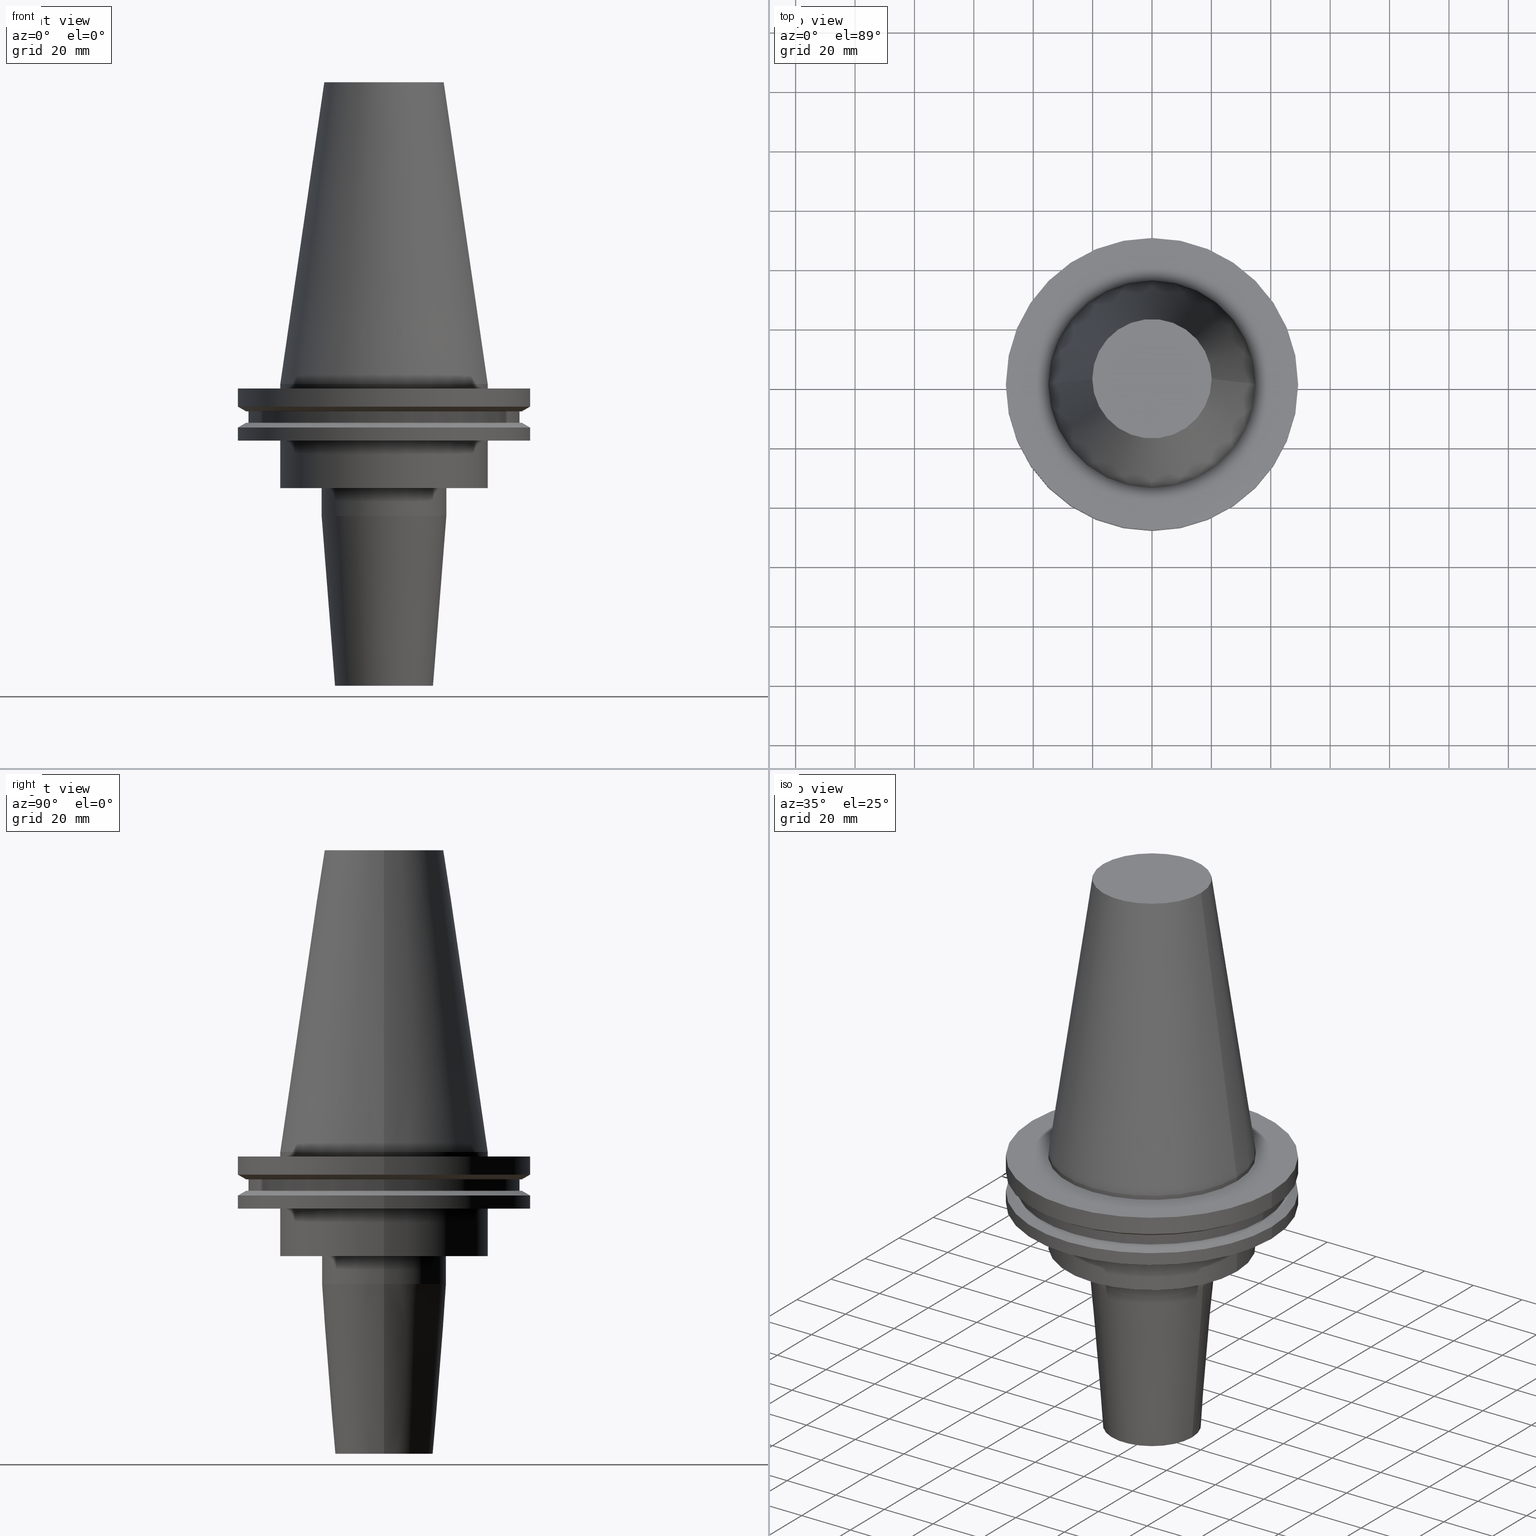
[diagram: canonical four-view strip — front | top / right | iso, engineering-drawing reading convention]
A machine part, canonical four-view strip (front | top / right | iso — engineering-drawing reading convention). The complete STEP part file that produces these views, byte-faithful:
ISO-10303-21;
HEADER;
FILE_DESCRIPTION (( 'STEP AP203' ),
    '1' );
FILE_NAME ('BCV50-SF_750-4.stp',
    '2022-03-03T17:21:51',
    ( '' ),
    ( '' ),
    'SwSTEP 2.0',
    'SolidWorks 2021',
    '' );
FILE_SCHEMA (( 'CONFIG_CONTROL_DESIGN' ));
ENDSEC;

DATA;
#1 = ADVANCED_FACE ( 'NONE', ( #333, #8 ), #359, .F. ) ;
#2 = DIRECTION ( 'NONE',  ( 1.000000000000000000, 0.000000000000000000, 0.000000000000000000 ) ) ;
#3 = AXIS2_PLACEMENT_3D ( 'NONE', #301, #351, #295 ) ;
#4 = CONICAL_SURFACE ( 'NONE', #386, 34.92499999999999005, 0.1448138465474119452 ) ;
#5 = EDGE_LOOP ( 'NONE', ( #441, #68, #309, #364 ) ) ;
#6 = DIRECTION ( 'NONE',  ( -0.000000000000000000, -0.000000000000000000, 1.000000000000000000 ) ) ;
#7 = CARTESIAN_POINT ( 'NONE',  ( -16.50000000000000000, 2.296212748401287183E-15, -101.5999999999999943 ) ) ;
#8 = FACE_OUTER_BOUND ( 'NONE', #788, .T. ) ;
#9 = DIRECTION ( 'NONE',  ( 1.000000000000000000, 0.000000000000000000, 0.000000000000000000 ) ) ;
#10 = DIRECTION ( 'NONE',  ( -1.000000000000000000, 0.000000000000000000, -0.000000000000000000 ) ) ;
#11 = EDGE_LOOP ( 'NONE', ( #174, #401, #74, #398 ) ) ;
#12 = CARTESIAN_POINT ( 'NONE',  ( -49.21499999999998920, 6.027099222003697037E-15, 101.5999999999999943 ) ) ;
#13 = CARTESIAN_POINT ( 'NONE',  ( -9.525000000000002132, 1.166476076187854219E-15, 0.000000000000000000 ) ) ;
#14 = AXIS2_PLACEMENT_3D ( 'NONE', #21, #149, #94 ) ;
#15 = ORIENTED_EDGE ( 'NONE', *, *, #25, .T. ) ;
#16 = CARTESIAN_POINT ( 'NONE',  ( -16.50000000000000000, 2.020667218593133100E-15, -101.5999999999999943 ) ) ;
#17 = DIRECTION ( 'NONE',  ( 1.000000000000000000, 0.000000000000000000, 0.000000000000000000 ) ) ;
#18 = ORIENTED_EDGE ( 'NONE', *, *, #648, .F. ) ;
#19 = DIRECTION ( 'NONE',  ( -0.000000000000000000, -0.000000000000000000, 1.000000000000000000 ) ) ;
#20 = EDGE_CURVE ( 'NONE', #453, #439, #43, .T. ) ;
#21 = CARTESIAN_POINT ( 'NONE',  ( 0.000000000000000000, 0.000000000000000000, -19.04999999999999716 ) ) ;
#22 = CARTESIAN_POINT ( 'NONE',  ( 0.000000000000000000, 0.000000000000000000, 0.000000000000000000 ) ) ;
#23 = FACE_BOUND ( 'NONE', #712, .T. ) ;
#24 = ORIENTED_EDGE ( 'NONE', *, *, #698, .F. ) ;
#25 = EDGE_CURVE ( 'NONE', #50, #493, #805, .T. ) ;
#26 = DIRECTION ( 'NONE',  ( -0.000000000000000000, -0.000000000000000000, 1.000000000000000000 ) ) ;
#27 = CIRCLE ( 'NONE', #759, 34.92499999999999005 ) ;
#28 = DIRECTION ( 'NONE',  ( -0.000000000000000000, -0.000000000000000000, 1.000000000000000000 ) ) ;
#29 = DIRECTION ( 'NONE',  ( 1.000000000000000000, 0.000000000000000000, 0.000000000000000000 ) ) ;
#30 = AXIS2_PLACEMENT_3D ( 'NONE', #440, #837, #52 ) ;
#31 = VERTEX_POINT ( 'NONE', #706 ) ;
#32 = CARTESIAN_POINT ( 'NONE',  ( 34.92499999999999005, 4.277078946022130098E-15, 0.000000000000000000 ) ) ;
#33 = PRODUCT ( 'BCV50-SF_750-4', 'BCV50-SF_750-4', '', ( #41 ) ) ;
#34 = DIRECTION ( 'NONE',  ( 1.000000000000000000, 0.000000000000000000, 0.000000000000000000 ) ) ;
#35 = ORIENTED_EDGE ( 'NONE', *, *, #105, .F. ) ;
#36 = EDGE_CURVE ( 'NONE', #578, #718, #825, .T. ) ;
#37 = DIRECTION ( 'NONE',  ( -0.000000000000000000, -0.000000000000000000, 1.000000000000000000 ) ) ;
#38 = ADVANCED_FACE ( 'NONE', ( #112 ), #507, .F. ) ;
#39 = ORIENTED_EDGE ( 'NONE', *, *, #659, .F. ) ;
#40 = FACE_OUTER_BOUND ( 'NONE', #42, .T. ) ;
#41 = MECHANICAL_CONTEXT ( 'NONE', #563, 'mechanical' ) ;
#42 = EDGE_LOOP ( 'NONE', ( #614, #261, #227, #603 ) ) ;
#43 = CIRCLE ( 'NONE', #516, 46.43919780457007818 ) ;
#44 = AXIS2_PLACEMENT_3D ( 'NONE', #345, #145, #213 ) ;
#45 = DIRECTION ( 'NONE',  ( 1.000000000000000000, 0.000000000000000000, 0.000000000000000000 ) ) ;
#46 = ORIENTED_EDGE ( 'NONE', *, *, #20, .T. ) ;
#47 = DIRECTION ( 'NONE',  ( -1.000000000000000000, 0.000000000000000000, 0.000000000000000000 ) ) ;
#48 = CARTESIAN_POINT ( 'NONE',  ( 0.000000000000000000, 49.21499999999998920, -19.04999999999999716 ) ) ;
#49 = DIRECTION ( 'NONE',  ( 1.000000000000000000, 0.000000000000000000, 0.000000000000000000 ) ) ;
#50 = VERTEX_POINT ( 'NONE', #95 ) ;
#51 = EDGE_CURVE ( 'NONE', #447, #409, #382, .T. ) ;
#52 = DIRECTION ( 'NONE',  ( 1.000000000000000000, 0.000000000000000000, 0.000000000000000000 ) ) ;
#53 = ORIENTED_EDGE ( 'NONE', *, *, #797, .T. ) ;
#54 = CARTESIAN_POINT ( 'NONE',  ( 46.43919780457007818, 5.857130358318725715E-15, -13.05499999999999794 ) ) ;
#55 = AXIS2_PLACEMENT_3D ( 'NONE', #338, #551, #427 ) ;
#56 = CONICAL_SURFACE ( 'NONE', #761, 34.92499999999999005, 0.1448138465474119452 ) ;
#57 = AXIS2_PLACEMENT_3D ( 'NONE', #569, #109, #832 ) ;
#58 = CARTESIAN_POINT ( 'NONE',  ( 0.000000000000000000, 0.000000000000000000, 0.000000000000000000 ) ) ;
#59 = VERTEX_POINT ( 'NONE', #220 ) ;
#60 = DIRECTION ( 'NONE',  ( 1.000000000000000000, 0.000000000000000000, 0.000000000000000000 ) ) ;
#61 = EDGE_CURVE ( 'NONE', #728, #150, #249, .T. ) ;
#62 = ORIENTED_EDGE ( 'NONE', *, *, #573, .T. ) ;
#63 = CARTESIAN_POINT ( 'NONE',  ( 16.50000000000000000, 0.000000000000000000, -101.5999999999999943 ) ) ;
#64 = CC_DESIGN_DATE_AND_TIME_ASSIGNMENT ( #738, #202, ( #513 ) ) ;
#65 = EDGE_CURVE ( 'NONE', #672, #200, #224, .T. ) ;
#66 = CARTESIAN_POINT ( 'NONE',  ( 0.000000000000000000, 45.64500000000000313, -13.05499999999999794 ) ) ;
#67 = CALENDAR_DATE ( 2022, 3, 3 ) ;
#68 = ORIENTED_EDGE ( 'NONE', *, *, #763, .T. ) ;
#69 = CARTESIAN_POINT ( 'NONE',  ( 0.000000000000000000, 0.000000000000000000, -7.602389855251287187 ) ) ;
#70 = AXIS2_PLACEMENT_3D ( 'NONE', #443, #721, #10 ) ;
#71 = AXIS2_PLACEMENT_3D ( 'NONE', #781, #129, #376 ) ;
#72 = AXIS2_PLACEMENT_3D ( 'NONE', #271, #604, #284 ) ;
#73 = LOCAL_TIME ( 11, 21, 51.00000000000000000, #475 ) ;
#74 = ORIENTED_EDGE ( 'NONE', *, *, #541, .T. ) ;
#75 = CARTESIAN_POINT ( 'NONE',  ( 0.000000000000000000, 9.525000000000002132, -54.59999999999999432 ) ) ;
#76 = ADVANCED_FACE ( 'NONE', ( #758 ), #354, .T. ) ;
#77 = LINE ( 'NONE', #172, #206 ) ;
#78 = APPROVAL_DATE_TIME ( #404, #590 ) ;
#79 = ORIENTED_EDGE ( 'NONE', *, *, #144, .T. ) ;
#80 = DIRECTION ( 'NONE',  ( 1.000000000000000000, 0.000000000000000000, 0.000000000000000000 ) ) ;
#81 = CARTESIAN_POINT ( 'NONE',  ( 0.000000000000000000, 0.000000000000000000, -1.499999999999987566 ) ) ;
#82 = EDGE_LOOP ( 'NONE', ( #806, #770, #641, #159 ) ) ;
#83 = DIRECTION ( 'NONE',  ( 1.000000000000000000, 0.000000000000000000, 0.000000000000000000 ) ) ;
#84 = DIRECTION ( 'NONE',  ( -0.000000000000000000, -0.000000000000000000, 1.000000000000000000 ) ) ;
#85 = AXIS2_PLACEMENT_3D ( 'NONE', #391, #576, #2 ) ;
#86 = AXIS2_PLACEMENT_3D ( 'NONE', #75, #337, #83 ) ;
#87 = ORIENTED_EDGE ( 'NONE', *, *, #317, .F. ) ;
#88 = CARTESIAN_POINT ( 'NONE',  ( 0.000000000000000000, 0.000000000000000000, -101.5999999999999943 ) ) ;
#89 = DIRECTION ( 'NONE',  ( 1.000000000000000000, 0.000000000000000000, 0.000000000000000000 ) ) ;
#90 = CARTESIAN_POINT ( 'NONE',  ( 46.43919780457007818, 0.000000000000000000, -9.204999999999991189 ) ) ;
#91 = ADVANCED_FACE ( 'NONE', ( #692 ), #657, .T. ) ;
#92 = FACE_OUTER_BOUND ( 'NONE', #250, .T. ) ;
#93 = ORIENTED_EDGE ( 'NONE', *, *, #791, .F. ) ;
#94 = DIRECTION ( 'NONE',  ( 1.000000000000000000, 0.000000000000000000, 0.000000000000000000 ) ) ;
#95 = CARTESIAN_POINT ( 'NONE',  ( -45.64500000000000313, 5.589900314708094957E-15, -9.204999999999991189 ) ) ;
#96 = CARTESIAN_POINT ( 'NONE',  ( 0.000000000000000000, 0.000000000000000000, -35.04999999999999716 ) ) ;
#97 = VERTEX_POINT ( 'NONE', #624 ) ;
#98 = CARTESIAN_POINT ( 'NONE',  ( 0.000000000000000000, 0.000000000000000000, 101.5999999999999943 ) ) ;
#99 = CIRCLE ( 'NONE', #643, 49.21499999999998920 ) ;
#100 = DIRECTION ( 'NONE',  ( 1.000000000000000000, 0.000000000000000000, 0.000000000000000000 ) ) ;
#101 = CIRCLE ( 'NONE', #72, 9.525000000000002132 ) ;
#102 = CARTESIAN_POINT ( 'NONE',  ( -20.10819343178871321, 0.000000000000000000, 101.5999999999999801 ) ) ;
#103 = LOCAL_TIME ( 11, 21, 51.00000000000000000, #725 ) ;
#104 = ORIENTED_EDGE ( 'NONE', *, *, #517, .F. ) ;
#105 = EDGE_CURVE ( 'NONE', #380, #498, #362, .T. ) ;
#106 = CARTESIAN_POINT ( 'NONE',  ( 0.000000000000000000, 0.000000000000000000, -19.04999999999999716 ) ) ;
#107 = APPROVAL ( #717, 'UNSPECIFIED' ) ;
#108 = DIRECTION ( 'NONE',  ( 1.000000000000000000, 0.000000000000000000, 0.000000000000000000 ) ) ;
#109 = DIRECTION ( 'NONE',  ( -0.000000000000000000, -0.000000000000000000, 1.000000000000000000 ) ) ;
#110 = VERTEX_POINT ( 'NONE', #620 ) ;
#111 = FACE_OUTER_BOUND ( 'NONE', #298, .T. ) ;
#112 = FACE_OUTER_BOUND ( 'NONE', #11, .T. ) ;
#113 = VERTEX_POINT ( 'NONE', #289 ) ;
#114 = ADVANCED_FACE ( 'NONE', ( #40 ), #305, .F. ) ;
#115 = ORIENTED_EDGE ( 'NONE', *, *, #715, .F. ) ;
#116 = CIRCLE ( 'NONE', #415, 34.92499999999999716 ) ;
#117 = AXIS2_PLACEMENT_3D ( 'NONE', #747, #278, #9 ) ;
#118 = EDGE_CURVE ( 'NONE', #321, #113, #636, .T. ) ;
#119 = EDGE_LOOP ( 'NONE', ( #694, #821, #87, #755 ) ) ;
#120 = DIRECTION ( 'NONE',  ( 1.000000000000000000, 0.000000000000000000, 0.000000000000000000 ) ) ;
#121 = VERTEX_POINT ( 'NONE', #831 ) ;
#122 = VERTEX_POINT ( 'NONE', #235 ) ;
#123 = LINE ( 'NONE', #587, #471 ) ;
#124 = AXIS2_PLACEMENT_3D ( 'NONE', #96, #772, #34 ) ;
#125 = ADVANCED_FACE ( 'NONE', ( #419 ), #687, .T. ) ;
#126 = PERSON_AND_ORGANIZATION ( #506, #690 ) ;
#127 = ORIENTED_EDGE ( 'NONE', *, *, #218, .F. ) ;
#128 = DIRECTION ( 'NONE',  ( -0.000000000000000000, -0.000000000000000000, 1.000000000000000000 ) ) ;
#129 = DIRECTION ( 'NONE',  ( -0.000000000000000000, -0.000000000000000000, 1.000000000000000000 ) ) ;
#130 = PERSON_AND_ORGANIZATION_ROLE ( 'design_supplier' ) ;
#131 = ORIENTED_EDGE ( 'NONE', *, *, #517, .T. ) ;
#132 = CARTESIAN_POINT ( 'NONE',  ( 49.21499999999998920, 6.027099222003697037E-15, -14.65761014474876944 ) ) ;
#133 = FACE_BOUND ( 'NONE', #634, .T. ) ;
#134 = EDGE_LOOP ( 'NONE', ( #93, #171, #383, #179 ) ) ;
#135 = ADVANCED_FACE ( 'NONE', ( #632, #509 ), #371, .F. ) ;
#136 = DIRECTION ( 'NONE',  ( 1.000000000000000000, 0.000000000000000000, 0.000000000000000000 ) ) ;
#137 = AXIS2_PLACEMENT_3D ( 'NONE', #828, #767, #566 ) ;
#138 = LINE ( 'NONE', #646, #223 ) ;
#139 = CIRCLE ( 'NONE', #794, 49.21500000000000341 ) ;
#140 = AXIS2_PLACEMENT_3D ( 'NONE', #621, #302, #221 ) ;
#141 = CALENDAR_DATE ( 2022, 3, 3 ) ;
#142 = EDGE_LOOP ( 'NONE', ( #638, #15 ) ) ;
#143 = LINE ( 'NONE', #680, #330 ) ;
#144 = EDGE_CURVE ( 'NONE', #439, #122, #138, .T. ) ;
#145 = DIRECTION ( 'NONE',  ( 0.000000000000000000, 0.000000000000000000, -1.000000000000000000 ) ) ;
#146 = COORDINATED_UNIVERSAL_TIME_OFFSET ( 6, 0, .BEHIND. ) ;
#147 = ORIENTED_EDGE ( 'NONE', *, *, #791, .T. ) ;
#148 = CARTESIAN_POINT ( 'NONE',  ( -49.21499999999998920, 6.027099222003697037E-15, -19.04999999999999716 ) ) ;
#149 = DIRECTION ( 'NONE',  ( -0.000000000000000000, -0.000000000000000000, 1.000000000000000000 ) ) ;
#150 = VERTEX_POINT ( 'NONE', #743 ) ;
#151 = CARTESIAN_POINT ( 'NONE',  ( -46.43919780457007818, 5.687161494633754392E-15, -9.204999999999991189 ) ) ;
#152 = DIRECTION ( 'NONE',  ( -0.000000000000000000, -0.000000000000000000, 1.000000000000000000 ) ) ;
#153 = EDGE_CURVE ( 'NONE', #493, #50, #793, .T. ) ;
#154 = AXIS2_PLACEMENT_3D ( 'NONE', #547, #810, #478 ) ;
#155 = CARTESIAN_POINT ( 'NONE',  ( 0.000000000000000000, 0.000000000000000000, 0.000000000000000000 ) ) ;
#156 = PLANE ( 'NONE',  #44 ) ;
#157 = DIRECTION ( 'NONE',  ( 1.000000000000000000, 0.000000000000000000, 0.000000000000000000 ) ) ;
#158 = DIRECTION ( 'NONE',  ( -0.000000000000000000, -0.000000000000000000, 1.000000000000000000 ) ) ;
#159 = ORIENTED_EDGE ( 'NONE', *, *, #175, .T. ) ;
#160 = DIRECTION ( 'NONE',  ( -0.000000000000000000, -0.000000000000000000, 1.000000000000000000 ) ) ;
#161 = DIRECTION ( 'NONE',  ( 0.8660254037844273833, 0.000000000000000000, 0.5000000000000195399 ) ) ;
#162 = DIRECTION ( 'NONE',  ( 1.000000000000000000, 0.000000000000000000, 0.000000000000000000 ) ) ;
#163 = EDGE_LOOP ( 'NONE', ( #35, #853, #550, #552 ) ) ;
#164 = CC_DESIGN_PERSON_AND_ORGANIZATION_ASSIGNMENT ( #533, #463, ( #835 ) ) ;
#165 = AXIS2_PLACEMENT_3D ( 'NONE', #22, #28, #500 ) ;
#166 = DIRECTION ( 'NONE',  ( -0.000000000000000000, -0.000000000000000000, 1.000000000000000000 ) ) ;
#167 = DIRECTION ( 'NONE',  ( -0.000000000000000000, -0.000000000000000000, 1.000000000000000000 ) ) ;
#168 = AXIS2_PLACEMENT_3D ( 'NONE', #177, #727, #120 ) ;
#169 = DIRECTION ( 'NONE',  ( -0.000000000000000000, -0.000000000000000000, 1.000000000000000000 ) ) ;
#170 = DIRECTION ( 'NONE',  ( -1.000000000000000000, 0.000000000000000000, 0.000000000000000000 ) ) ;
#171 = ORIENTED_EDGE ( 'NONE', *, *, #218, .T. ) ;
#172 = CARTESIAN_POINT ( 'NONE',  ( 34.92499999999999005, 0.000000000000000000, 101.5999999999999943 ) ) ;
#173 = APPLICATION_PROTOCOL_DEFINITION ( 'international standard', 'config_control_design', 1994, #655 ) ;
#174 = ORIENTED_EDGE ( 'NONE', *, *, #797, .F. ) ;
#175 = EDGE_CURVE ( 'NONE', #599, #113, #594, .T. ) ;
#176 = PLANE ( 'NONE',  #70 ) ;
#177 = CARTESIAN_POINT ( 'NONE',  ( 0.000000000000000000, 0.000000000000000000, -35.04999999999999716 ) ) ;
#178 = CIRCLE ( 'NONE', #85, 46.43919780457007818 ) ;
#179 = ORIENTED_EDGE ( 'NONE', *, *, #316, .F. ) ;
#180 = CIRCLE ( 'NONE', #124, 34.92499999999999716 ) ;
#181 = CARTESIAN_POINT ( 'NONE',  ( 0.000000000000000000, 0.000000000000000000, 101.5999999999999943 ) ) ;
#182 = AXIS2_PLACEMENT_3D ( 'NONE', #637, #37, #304 ) ;
#183 = AXIS2_PLACEMENT_3D ( 'NONE', #413, #760, #616 ) ;
#184 = ORIENTED_EDGE ( 'NONE', *, *, #51, .T. ) ;
#185 = ORIENTED_EDGE ( 'NONE', *, *, #61, .T. ) ;
#186 = EDGE_CURVE ( 'NONE', #617, #542, #116, .T. ) ;
#187 = ADVANCED_FACE ( 'NONE', ( #403 ), #583, .T. ) ;
#188 = ORIENTED_EDGE ( 'NONE', *, *, #659, .T. ) ;
#189 = DIRECTION ( 'NONE',  ( 0.000000000000000000, 0.000000000000000000, -1.000000000000000000 ) ) ;
#190 = CLOSED_SHELL ( 'NONE', ( #38, #125, #329, #273, #490, #424, #76, #824, #387, #685, #808, #460, #242, #1, #619, #135, #575, #365, #198, #787, #656, #187, #292, #356, #393, #379, #91, #778, #114, #642 ) ) ;
#191 = CIRCLE ( 'NONE', #561, 20.10819343178871321 ) ;
#192 = CIRCLE ( 'NONE', #168, 21.00000000000000000 ) ;
#193 = EDGE_LOOP ( 'NONE', ( #777, #723, #343, #581 ) ) ;
#194 = CYLINDRICAL_SURFACE ( 'NONE', #208, 34.92499999999999716 ) ;
#195 = DIRECTION ( 'NONE',  ( -0.000000000000000000, -0.000000000000000000, 1.000000000000000000 ) ) ;
#196 = COORDINATED_UNIVERSAL_TIME_OFFSET ( 6, 0, .BEHIND. ) ;
#197 = VERTEX_POINT ( 'NONE', #7 ) ;
#198 = ADVANCED_FACE ( 'NONE', ( #133, #840 ), #677, .F. ) ;
#199 = CARTESIAN_POINT ( 'NONE',  ( 34.92499999999999716, 0.000000000000000000, -19.04999999999999716 ) ) ;
#200 = VERTEX_POINT ( 'NONE', #842 ) ;
#201 = CARTESIAN_POINT ( 'NONE',  ( -9.525000000000002132, 1.166476076187854219E-15, -54.59999999999999432 ) ) ;
#202 = DATE_TIME_ROLE ( 'creation_date' ) ;
#203 = EDGE_CURVE ( 'NONE', #31, #113, #77, .T. ) ;
#204 = ORIENTED_EDGE ( 'NONE', *, *, #602, .T. ) ;
#205 = CYLINDRICAL_SURFACE ( 'NONE', #457, 49.21499999999998920 ) ;
#206 = VECTOR ( 'NONE', #836, 1000.000000000000000 ) ;
#207 = CYLINDRICAL_SURFACE ( 'NONE', #357, 20.99999999999999645 ) ;
#208 = AXIS2_PLACEMENT_3D ( 'NONE', #406, #390, #136 ) ;
#209 = AXIS2_PLACEMENT_3D ( 'NONE', #567, #819, #558 ) ;
#210 = PERSON_AND_ORGANIZATION ( #506, #690 ) ;
#211 = EDGE_LOOP ( 'NONE', ( #39, #127 ) ) ;
#212 = CARTESIAN_POINT ( 'NONE',  ( 9.525000000000002132, 0.000000000000000000, -54.59999999999999432 ) ) ;
#213 = DIRECTION ( 'NONE',  ( -1.000000000000000000, 0.000000000000000000, -0.000000000000000000 ) ) ;
#214 = ORIENTED_EDGE ( 'NONE', *, *, #630, .T. ) ;
#215 = DIRECTION ( 'NONE',  ( 0.8660254037844169472, 1.060575238724880168E-16, -0.5000000000000375255 ) ) ;
#216 = EDGE_CURVE ( 'NONE', #735, #321, #528, .T. ) ;
#217 = DIRECTION ( 'NONE',  ( -0.000000000000000000, -0.000000000000000000, 1.000000000000000000 ) ) ;
#218 = EDGE_CURVE ( 'NONE', #798, #578, #178, .T. ) ;
#219 = EDGE_CURVE ( 'NONE', #121, #525, #99, .T. ) ;
#220 = CARTESIAN_POINT ( 'NONE',  ( 20.99999999999999645, 0.000000000000000000, -44.42207868720840480 ) ) ;
#221 = DIRECTION ( 'NONE',  ( 1.000000000000000000, 0.000000000000000000, 0.000000000000000000 ) ) ;
#222 = CARTESIAN_POINT ( 'NONE',  ( 0.000000000000000000, 0.000000000000000000, 101.5999999999999943 ) ) ;
#223 = VECTOR ( 'NONE', #572, 1000.000000000000114 ) ;
#224 = LINE ( 'NONE', #496, #344 ) ;
#225 = CIRCLE ( 'NONE', #720, 45.64500000000000313 ) ;
#226 = DIRECTION ( 'NONE',  ( 0.000000000000000000, -0.000000000000000000, 1.000000000000000000 ) ) ;
#227 = ORIENTED_EDGE ( 'NONE', *, *, #244, .T. ) ;
#228 = CARTESIAN_POINT ( 'NONE',  ( 0.000000000000000000, 0.000000000000000000, -7.602389855251287187 ) ) ;
#229 = EDGE_CURVE ( 'NONE', #389, #31, #442, .T. ) ;
#230 = CARTESIAN_POINT ( 'NONE',  ( 0.000000000000000000, 0.000000000000000000, -101.5999999999999943 ) ) ;
#231 = CARTESIAN_POINT ( 'NONE',  ( 0.000000000000000000, 0.000000000000000000, 101.5999999999999943 ) ) ;
#232 = DIRECTION ( 'NONE',  ( -0.000000000000000000, -0.000000000000000000, 1.000000000000000000 ) ) ;
#233 = DIRECTION ( 'NONE',  ( -0.000000000000000000, -0.000000000000000000, 1.000000000000000000 ) ) ;
#234 = EDGE_LOOP ( 'NONE', ( #849, #270, #752, #430 ) ) ;
#235 = CARTESIAN_POINT ( 'NONE',  ( -49.21499999999998920, 6.027099222003697037E-15, -14.65761014474876944 ) ) ;
#236 = AXIS2_PLACEMENT_3D ( 'NONE', #181, #378, #60 ) ;
#237 = CARTESIAN_POINT ( 'NONE',  ( 16.50000000000000000, 0.000000000000000000, -101.5999999999999943 ) ) ;
#238 = ORIENTED_EDGE ( 'NONE', *, *, #608, .F. ) ;
#239 = DIRECTION ( 'NONE',  ( 1.000000000000000000, 0.000000000000000000, 0.000000000000000000 ) ) ;
#240 = LINE ( 'NONE', #577, #489 ) ;
#241 = VERTEX_POINT ( 'NONE', #201 ) ;
#242 = ADVANCED_FACE ( 'NONE', ( #466 ), #176, .F. ) ;
#243 = FACE_OUTER_BOUND ( 'NONE', #653, .T. ) ;
#244 = EDGE_CURVE ( 'NONE', #728, #649, #407, .T. ) ;
#245 = DIRECTION ( 'NONE',  ( -0.000000000000000000, -0.000000000000000000, 1.000000000000000000 ) ) ;
#246 = ORIENTED_EDGE ( 'NONE', *, *, #51, .F. ) ;
#247 = CARTESIAN_POINT ( 'NONE',  ( -34.92499999999999716, 4.277078946022130887E-15, -35.04999999999999716 ) ) ;
#248 = CARTESIAN_POINT ( 'NONE',  ( -34.92499999999999005, 4.277078946022130098E-15, -1.499999999999987566 ) ) ;
#249 = CIRCLE ( 'NONE', #570, 9.525000000000000355 ) ;
#250 = EDGE_LOOP ( 'NONE', ( #514, #104 ) ) ;
#251 = CIRCLE ( 'NONE', #117, 45.64500000000000313 ) ;
#252 = FACE_OUTER_BOUND ( 'NONE', #82, .T. ) ;
#253 = VECTOR ( 'NONE', #158, 1000.000000000000000 ) ;
#254 = APPROVAL_DATE_TIME ( #848, #107 ) ;
#255 = MANIFOLD_SOLID_BREP ( 'BA', #190 ) ;
#256 = ORIENTED_EDGE ( 'NONE', *, *, #713, .F. ) ;
#257 = EDGE_CURVE ( 'NONE', #31, #389, #27, .T. ) ;
#258 = ORIENTED_EDGE ( 'NONE', *, *, #450, .T. ) ;
#259 = DIRECTION ( 'NONE',  ( -0.000000000000000000, -0.000000000000000000, 1.000000000000000000 ) ) ;
#260 = APPROVAL_ROLE ( '' ) ;
#261 = ORIENTED_EDGE ( 'NONE', *, *, #61, .F. ) ;
#262 = DIRECTION ( 'NONE',  ( -0.000000000000000000, -0.000000000000000000, 1.000000000000000000 ) ) ;
#263 = VECTOR ( 'NONE', #160, 1000.000000000000000 ) ;
#264 = AXIS2_PLACEMENT_3D ( 'NONE', #526, #322, #839 ) ;
#265 = EDGE_CURVE ( 'NONE', #394, #493, #766, .T. ) ;
#266 = AXIS2_PLACEMENT_3D ( 'NONE', #231, #633, #625 ) ;
#267 = DIRECTION ( 'NONE',  ( -0.000000000000000000, -0.000000000000000000, 1.000000000000000000 ) ) ;
#268 = UNCERTAINTY_MEASURE_WITH_UNIT (LENGTH_MEASURE( 1.000000000000000082E-05 ), #445, 'distance_accuracy_value', 'NONE');
#269 = DATE_AND_TIME ( #141, #73 ) ;
#270 = ORIENTED_EDGE ( 'NONE', *, *, #615, .T. ) ;
#271 = CARTESIAN_POINT ( 'NONE',  ( 0.000000000000000000, 0.000000000000000000, -54.59999999999999432 ) ) ;
#272 = CARTESIAN_POINT ( 'NONE',  ( 0.000000000000000000, 0.000000000000000000, -1.499999999999987566 ) ) ;
#273 = ADVANCED_FACE ( 'NONE', ( #285 ), #804, .T. ) ;
#274 = ORIENTED_EDGE ( 'NONE', *, *, #229, .T. ) ;
#275 = DIRECTION ( 'NONE',  ( -0.000000000000000000, -0.000000000000000000, 1.000000000000000000 ) ) ;
#276 = LINE ( 'NONE', #280, #504 ) ;
#277 = ORIENTED_EDGE ( 'NONE', *, *, #308, .F. ) ;
#278 = DIRECTION ( 'NONE',  ( -0.000000000000000000, -0.000000000000000000, 1.000000000000000000 ) ) ;
#279 = AXIS2_PLACEMENT_3D ( 'NONE', #557, #438, #696 ) ;
#280 = CARTESIAN_POINT ( 'NONE',  ( 20.99999999999999645, 0.000000000000000000, 0.000000000000000000 ) ) ;
#281 = CIRCLE ( 'NONE', #444, 34.92499999999999716 ) ;
#282 = CIRCLE ( 'NONE', #458, 49.21499999999999631 ) ;
#283 = ORIENTED_EDGE ( 'NONE', *, *, #833, .F. ) ;
#284 = DIRECTION ( 'NONE',  ( 1.000000000000000000, 0.000000000000000000, 0.000000000000000000 ) ) ;
#285 = FACE_OUTER_BOUND ( 'NONE', #234, .T. ) ;
#286 = EDGE_LOOP ( 'NONE', ( #18, #780, #369, #421 ) ) ;
#287 = CARTESIAN_POINT ( 'NONE',  ( -46.43919780457007818, 5.857130358318727293E-15, -9.204999999999991189 ) ) ;
#288 = DIRECTION ( 'NONE',  ( -0.000000000000000000, -0.000000000000000000, 1.000000000000000000 ) ) ;
#289 = CARTESIAN_POINT ( 'NONE',  ( 34.92499999999999005, 4.277078946022130098E-15, 0.000000000000000000 ) ) ;
#290 = CARTESIAN_POINT ( 'NONE',  ( 49.21499999999999631, 0.000000000000000000, 101.5999999999999943 ) ) ;
#291 = FACE_OUTER_BOUND ( 'NONE', #163, .T. ) ;
#292 = ADVANCED_FACE ( 'NONE', ( #681 ), #816, .T. ) ;
#293 = AXIS2_PLACEMENT_3D ( 'NONE', #434, #710, #108 ) ;
#294 = CONICAL_SURFACE ( 'NONE', #154, 49.21499999999998920, 1.047197551196554333 ) ;
#295 = DIRECTION ( 'NONE',  ( 1.000000000000000000, 0.000000000000000000, 0.000000000000000000 ) ) ;
#296 = AXIS2_PLACEMENT_3D ( 'NONE', #492, #435, #162 ) ;
#297 = FACE_OUTER_BOUND ( 'NONE', #5, .T. ) ;
#298 = EDGE_LOOP ( 'NONE', ( #188, #147, #238, #485 ) ) ;
#299 = EDGE_CURVE ( 'NONE', #150, #241, #700, .T. ) ;
#300 = DIRECTION ( 'NONE',  ( -0.000000000000000000, -0.000000000000000000, 1.000000000000000000 ) ) ;
#301 = CARTESIAN_POINT ( 'NONE',  ( 0.000000000000000000, 0.000000000000000000, -35.04999999999999716 ) ) ;
#302 = DIRECTION ( 'NONE',  ( -0.000000000000000000, -0.000000000000000000, 1.000000000000000000 ) ) ;
#303 = EDGE_LOOP ( 'NONE', ( #773, #62 ) ) ;
#304 = DIRECTION ( 'NONE',  ( 1.000000000000000000, 0.000000000000000000, 0.000000000000000000 ) ) ;
#305 = CYLINDRICAL_SURFACE ( 'NONE', #670, 9.525000000000002132 ) ;
#306 = CIRCLE ( 'NONE', #596, 49.21500000000000341 ) ;
#307 = APPROVAL_PERSON_ORGANIZATION ( #449, #107, #647 ) ;
#308 = EDGE_CURVE ( 'NONE', #59, #548, #276, .T. ) ;
#309 = ORIENTED_EDGE ( 'NONE', *, *, #265, .T. ) ;
#310 = DIRECTION ( 'NONE',  ( 1.000000000000000000, 0.000000000000000000, 0.000000000000000000 ) ) ;
#311 = CALENDAR_DATE ( 2022, 3, 3 ) ;
#312 = ORIENTED_EDGE ( 'NONE', *, *, #667, .F. ) ;
#313 = DIRECTION ( 'NONE',  ( 1.000000000000000000, 0.000000000000000000, 0.000000000000000000 ) ) ;
#314 = ORIENTED_EDGE ( 'NONE', *, *, #105, .T. ) ;
#315 = CARTESIAN_POINT ( 'NONE',  ( 0.000000000000000000, 0.000000000000000000, -1.499999999999987566 ) ) ;
#316 = EDGE_CURVE ( 'NONE', #672, #718, #139, .T. ) ;
#317 = EDGE_CURVE ( 'NONE', #59, #380, #346, .T. ) ;
#318 = ORIENTED_EDGE ( 'NONE', *, *, #186, .F. ) ;
#319 = AXIS2_PLACEMENT_3D ( 'NONE', #684, #84, #757 ) ;
#320 = CARTESIAN_POINT ( 'NONE',  ( 0.000000000000000000, 0.000000000000000000, -14.65761014474876944 ) ) ;
#321 = VERTEX_POINT ( 'NONE', #540 ) ;
#322 = DIRECTION ( 'NONE',  ( -0.000000000000000000, -0.000000000000000000, 1.000000000000000000 ) ) ;
#323 = ORIENTED_EDGE ( 'NONE', *, *, #648, .T. ) ;
#324 = CARTESIAN_POINT ( 'NONE',  ( -34.92499999999999005, 0.000000000000000000, 0.000000000000000000 ) ) ;
#325 = EDGE_CURVE ( 'NONE', #735, #599, #353, .T. ) ;
#326 = DATE_AND_TIME ( #339, #505 ) ;
#327 = EDGE_LOOP ( 'NONE', ( #377, #534 ) ) ;
#328 = DIRECTION ( 'NONE',  ( -0.000000000000000000, -0.000000000000000000, 1.000000000000000000 ) ) ;
#329 = ADVANCED_FACE ( 'NONE', ( #753 ), #207, .T. ) ;
#330 = VECTOR ( 'NONE', #128, 1000.000000000000000 ) ;
#331 = CIRCLE ( 'NONE', #209, 49.21499999999998920 ) ;
#332 = COORDINATED_UNIVERSAL_TIME_OFFSET ( 6, 0, .BEHIND. ) ;
#333 = FACE_BOUND ( 'NONE', #303, .T. ) ;
#334 = PLANE ( 'NONE',  #86 ) ;
#335 = DIRECTION ( 'NONE',  ( 1.000000000000000000, 0.000000000000000000, 0.000000000000000000 ) ) ;
#336 = ORIENTED_EDGE ( 'NONE', *, *, #468, .F. ) ;
#337 = DIRECTION ( 'NONE',  ( 0.000000000000000000, -0.000000000000000000, 1.000000000000000000 ) ) ;
#338 = CARTESIAN_POINT ( 'NONE',  ( 0.000000000000000000, 0.000000000000000000, 101.5999999999999943 ) ) ;
#339 = CALENDAR_DATE ( 2022, 3, 3 ) ;
#340 = ORIENTED_EDGE ( 'NONE', *, *, #537, .F. ) ;
#341 = APPROVAL ( #731, 'UNSPECIFIED' ) ;
#342 = CARTESIAN_POINT ( 'NONE',  ( 0.000000000000000000, 46.43919780457007818, -9.204999999999998295 ) ) ;
#343 = ORIENTED_EDGE ( 'NONE', *, *, #713, .T. ) ;
#344 = VECTOR ( 'NONE', #169, 1000.000000000000000 ) ;
#345 = CARTESIAN_POINT ( 'NONE',  ( 0.000000000000000000, 49.21499999999999631, -1.499999999999992895 ) ) ;
#346 = CIRCLE ( 'NONE', #417, 20.99999999999999645 ) ;
#347 = PRODUCT_DEFINITION_FORMATION_WITH_SPECIFIED_SOURCE ( 'ANY', '', #33, .NOT_KNOWN. ) ;
#348 = ORIENTED_EDGE ( 'NONE', *, *, #203, .T. ) ;
#349 = DIRECTION ( 'NONE',  ( 1.000000000000000000, 0.000000000000000000, 0.000000000000000000 ) ) ;
#350 = CARTESIAN_POINT ( 'NONE',  ( -20.99999999999999645, 2.571758278209441267E-15, -44.42207868720840480 ) ) ;
#351 = DIRECTION ( 'NONE',  ( -0.000000000000000000, -0.000000000000000000, 1.000000000000000000 ) ) ;
#352 = DIRECTION ( 'NONE',  ( 1.000000000000000000, 0.000000000000000000, 0.000000000000000000 ) ) ;
#353 = LINE ( 'NONE', #474, #644 ) ;
#354 = CYLINDRICAL_SURFACE ( 'NONE', #293, 45.64500000000000313 ) ;
#355 = EDGE_LOOP ( 'NONE', ( #361, #524 ) ) ;
#356 = ADVANCED_FACE ( 'NONE', ( #555, #748 ), #156, .F. ) ;
#357 = AXIS2_PLACEMENT_3D ( 'NONE', #411, #691, #89 ) ;
#358 = APPROVAL_PERSON_ORGANIZATION ( #210, #341, #260 ) ;
#359 = PLANE ( 'NONE',  #279 ) ;
#360 = LINE ( 'NONE', #290, #253 ) ;
#361 = ORIENTED_EDGE ( 'NONE', *, *, #408, .T. ) ;
#362 = LINE ( 'NONE', #428, #486 ) ;
#363 = DIRECTION ( 'NONE',  ( -0.000000000000000000, -0.000000000000000000, 1.000000000000000000 ) ) ;
#364 = ORIENTED_EDGE ( 'NONE', *, *, #25, .F. ) ;
#365 = ADVANCED_FACE ( 'NONE', ( #613 ), #294, .T. ) ;
#366 = CARTESIAN_POINT ( 'NONE',  ( 0.000000000000000000, 0.000000000000000000, -13.05499999999999794 ) ) ;
#367 = DIRECTION ( 'NONE',  ( 0.000000000000000000, 0.000000000000000000, -1.000000000000000000 ) ) ;
#368 = EDGE_CURVE ( 'NONE', #525, #121, #545, .T. ) ;
#369 = ORIENTED_EDGE ( 'NONE', *, *, #739, .T. ) ;
#370 = VECTOR ( 'NONE', #560, 1000.000000000000000 ) ;
#371 = PLANE ( 'NONE',  #469 ) ;
#372 = VECTOR ( 'NONE', #661, 1000.000000000000000 ) ;
#373 = DIRECTION ( 'NONE',  ( -0.000000000000000000, -0.000000000000000000, 1.000000000000000000 ) ) ;
#374 = CONICAL_SURFACE ( 'NONE', #846, 49.21499999999998920, 1.047197551196554333 ) ;
#375 = ORIENTED_EDGE ( 'NONE', *, *, #676, .F. ) ;
#376 = DIRECTION ( 'NONE',  ( 1.000000000000000000, 0.000000000000000000, 0.000000000000000000 ) ) ;
#377 = ORIENTED_EDGE ( 'NONE', *, *, #219, .F. ) ;
#378 = DIRECTION ( 'NONE',  ( -0.000000000000000000, -0.000000000000000000, 1.000000000000000000 ) ) ;
#379 = ADVANCED_FACE ( 'NONE', ( #291 ), #823, .T. ) ;
#380 = VERTEX_POINT ( 'NONE', #350 ) ;
#381 = APPLICATION_PROTOCOL_DEFINITION ( 'international standard', 'config_control_design', 1994, #563 ) ;
#382 = CIRCLE ( 'NONE', #3, 34.92499999999999716 ) ;
#383 = ORIENTED_EDGE ( 'NONE', *, *, #36, .T. ) ;
#384 = VECTOR ( 'NONE', #6, 1000.000000000000000 ) ;
#385 = CARTESIAN_POINT ( 'NONE',  ( 34.92499999999999716, 0.000000000000000000, 101.5999999999999943 ) ) ;
#386 = AXIS2_PLACEMENT_3D ( 'NONE', #58, #367, #851 ) ;
#387 = ADVANCED_FACE ( 'NONE', ( #618 ), #422, .T. ) ;
#388 = DATE_TIME_ROLE ( 'classification_date' ) ;
#389 = VERTEX_POINT ( 'NONE', #248 ) ;
#390 = DIRECTION ( 'NONE',  ( -0.000000000000000000, -0.000000000000000000, 1.000000000000000000 ) ) ;
#391 = CARTESIAN_POINT ( 'NONE',  ( 0.000000000000000000, 0.000000000000000000, -9.204999999999991189 ) ) ;
#392 = PERSON_AND_ORGANIZATION ( #506, #690 ) ;
#393 = ADVANCED_FACE ( 'NONE', ( #243 ), #709, .T. ) ;
#394 = VERTEX_POINT ( 'NONE', #705 ) ;
#395 = CARTESIAN_POINT ( 'NONE',  ( 0.000000000000000000, 0.000000000000000000, 101.5999999999999943 ) ) ;
#396 = CC_DESIGN_PERSON_AND_ORGANIZATION_ASSIGNMENT ( #126, #130, ( #347 ) ) ;
#397 = CARTESIAN_POINT ( 'NONE',  ( 0.000000000000000000, 0.000000000000000000, -19.04999999999999716 ) ) ;
#398 = ORIENTED_EDGE ( 'NONE', *, *, #244, .F. ) ;
#399 = LINE ( 'NONE', #63, #820 ) ;
#400 = CONICAL_SURFACE ( 'NONE', #264, 46.43919780457007818, 1.047197551196575205 ) ;
#401 = ORIENTED_EDGE ( 'NONE', *, *, #299, .T. ) ;
#402 = CIRCLE ( 'NONE', #140, 16.50000000000000000 ) ;
#403 = FACE_OUTER_BOUND ( 'NONE', #134, .T. ) ;
#404 = DATE_AND_TIME ( #789, #562 ) ;
#405 = EDGE_LOOP ( 'NONE', ( #852, #46 ) ) ;
#406 = CARTESIAN_POINT ( 'NONE',  ( 0.000000000000000000, 0.000000000000000000, 101.5999999999999943 ) ) ;
#407 = LINE ( 'NONE', #606, #263 ) ;
#408 = EDGE_CURVE ( 'NONE', #542, #617, #281, .T. ) ;
#409 = VERTEX_POINT ( 'NONE', #568 ) ;
#410 = PLANE ( 'NONE',  #689 ) ;
#411 = CARTESIAN_POINT ( 'NONE',  ( 0.000000000000000000, 0.000000000000000000, 0.000000000000000000 ) ) ;
#412 = ORIENTED_EDGE ( 'NONE', *, *, #847, .F. ) ;
#413 = CARTESIAN_POINT ( 'NONE',  ( 0.000000000000000000, 0.000000000000000000, -14.65761014474876944 ) ) ;
#414 = ADVANCED_BREP_SHAPE_REPRESENTATION ( 'BCV50-SF_750-4', ( #255, #30 ), #730 ) ;
#415 = AXIS2_PLACEMENT_3D ( 'NONE', #779, #737, #313 ) ;
#416 = CARTESIAN_POINT ( 'NONE',  ( 45.64500000000000313, 0.000000000000000000, 101.5999999999999943 ) ) ;
#417 = AXIS2_PLACEMENT_3D ( 'NONE', #487, #217, #762 ) ;
#418 = CC_DESIGN_APPROVAL ( #590, ( #835 ) ) ;
#419 = FACE_OUTER_BOUND ( 'NONE', #119, .T. ) ;
#420 = CARTESIAN_POINT ( 'NONE',  ( -49.21500000000000341, 6.027099222003699404E-15, -7.602389855251287187 ) ) ;
#421 = ORIENTED_EDGE ( 'NONE', *, *, #325, .F. ) ;
#422 = CYLINDRICAL_SURFACE ( 'NONE', #432, 49.21499999999998920 ) ;
#423 = DIRECTION ( 'NONE',  ( 1.000000000000000000, 0.000000000000000000, 0.000000000000000000 ) ) ;
#424 = ADVANCED_FACE ( 'NONE', ( #111 ), #400, .T. ) ;
#425 = PLANE ( 'NONE',  #296 ) ;
#426 = ORIENTED_EDGE ( 'NONE', *, *, #454, .T. ) ;
#427 = DIRECTION ( 'NONE',  ( 1.000000000000000000, 0.000000000000000000, 0.000000000000000000 ) ) ;
#428 = CARTESIAN_POINT ( 'NONE',  ( -20.99999999999999645, 2.571758278209441267E-15, 0.000000000000000000 ) ) ;
#429 = CYLINDRICAL_SURFACE ( 'NONE', #57, 45.64500000000000313 ) ;
#430 = ORIENTED_EDGE ( 'NONE', *, *, #203, .F. ) ;
#431 = VECTOR ( 'NONE', #161, 1000.000000000000000 ) ;
#432 = AXIS2_PLACEMENT_3D ( 'NONE', #695, #623, #499 ) ;
#433 = AXIS2_PLACEMENT_3D ( 'NONE', #702, #363, #707 ) ;
#434 = CARTESIAN_POINT ( 'NONE',  ( 0.000000000000000000, 0.000000000000000000, 101.5999999999999943 ) ) ;
#435 = DIRECTION ( 'NONE',  ( 0.000000000000000000, -0.000000000000000000, 1.000000000000000000 ) ) ;
#436 = EDGE_LOOP ( 'NONE', ( #451, #184, #467, #318 ) ) ;
#437 = PRODUCT_RELATED_PRODUCT_CATEGORY ( 'detail', '', ( #33 ) ) ;
#438 = DIRECTION ( 'NONE',  ( 0.000000000000000000, -0.000000000000000000, 1.000000000000000000 ) ) ;
#439 = VERTEX_POINT ( 'NONE', #650 ) ;
#440 = CARTESIAN_POINT ( 'NONE',  ( 0.000000000000000000, 0.000000000000000000, 0.000000000000000000 ) ) ;
#441 = ORIENTED_EDGE ( 'NONE', *, *, #454, .F. ) ;
#442 = CIRCLE ( 'NONE', #784, 34.92499999999999005 ) ;
#443 = CARTESIAN_POINT ( 'NONE',  ( 0.000000000000000000, 20.10819343178871321, 101.5999999999999943 ) ) ;
#444 = AXIS2_PLACEMENT_3D ( 'NONE', #106, #635, #714 ) ;
#445 =( LENGTH_UNIT ( ) NAMED_UNIT ( * ) SI_UNIT ( .MILLI., .METRE. ) );
#446 = APPROVAL_PERSON_ORGANIZATION ( #734, #590, #749 ) ;
#447 = VERTEX_POINT ( 'NONE', #247 ) ;
#448 = CYLINDRICAL_SURFACE ( 'NONE', #236, 49.21499999999999631 ) ;
#449 = PERSON_AND_ORGANIZATION ( #506, #690 ) ;
#450 = EDGE_CURVE ( 'NONE', #110, #200, #571, .T. ) ;
#451 = ORIENTED_EDGE ( 'NONE', *, *, #554, .F. ) ;
#452 = PERSON_AND_ORGANIZATION_ROLE ( 'creator' ) ;
#453 = VERTEX_POINT ( 'NONE', #54 ) ;
#454 = EDGE_CURVE ( 'NONE', #508, #50, #123, .T. ) ;
#455 = AXIS2_PLACEMENT_3D ( 'NONE', #459, #195, #733 ) ;
#456 = ORIENTED_EDGE ( 'NONE', *, *, #216, .T. ) ;
#457 = AXIS2_PLACEMENT_3D ( 'NONE', #395, #611, #535 ) ;
#458 = AXIS2_PLACEMENT_3D ( 'NONE', #782, #776, #49 ) ;
#459 = CARTESIAN_POINT ( 'NONE',  ( 0.000000000000000000, 0.000000000000000000, -9.204999999999991189 ) ) ;
#460 = ADVANCED_FACE ( 'NONE', ( #252 ), #56, .T. ) ;
#461 = ORIENTED_EDGE ( 'NONE', *, *, #541, .F. ) ;
#462 = LINE ( 'NONE', #549, #384 ) ;
#463 = PERSON_AND_ORGANIZATION_ROLE ( 'classification_officer' ) ;
#464 = ORIENTED_EDGE ( 'NONE', *, *, #65, .F. ) ;
#465 = DIRECTION ( 'NONE',  ( -0.000000000000000000, -0.000000000000000000, 1.000000000000000000 ) ) ;
#466 = FACE_OUTER_BOUND ( 'NONE', #708, .T. ) ;
#467 = ORIENTED_EDGE ( 'NONE', *, *, #468, .T. ) ;
#468 = EDGE_CURVE ( 'NONE', #409, #542, #589, .T. ) ;
#469 = AXIS2_PLACEMENT_3D ( 'NONE', #48, #792, #239 ) ;
#470 = CARTESIAN_POINT ( 'NONE',  ( 46.43919780457007818, 0.000000000000000000, -9.204999999999991189 ) ) ;
#471 = VECTOR ( 'NONE', #510, 1000.000000000000000 ) ;
#472 = CIRCLE ( 'NONE', #645, 9.525000000000000355 ) ;
#473 = CC_DESIGN_PERSON_AND_ORGANIZATION_ASSIGNMENT ( #585, #520, ( #33 ) ) ;
#474 = CARTESIAN_POINT ( 'NONE',  ( -34.92499999999999005, 0.000000000000000000, 0.000000000000000000 ) ) ;
#475 = COORDINATED_UNIVERSAL_TIME_OFFSET ( 6, 0, .BEHIND. ) ;
#476 = ORIENTED_EDGE ( 'NONE', *, *, #855, .F. ) ;
#477 = FACE_OUTER_BOUND ( 'NONE', #211, .T. ) ;
#478 = DIRECTION ( 'NONE',  ( -1.000000000000000000, 0.000000000000000000, 0.000000000000000000 ) ) ;
#479 = ORIENTED_EDGE ( 'NONE', *, *, #579, .F. ) ;
#480 = DIRECTION ( 'NONE',  ( 1.000000000000000000, 0.000000000000000000, 0.000000000000000000 ) ) ;
#481 = ORIENTED_EDGE ( 'NONE', *, *, #602, .F. ) ;
#482 = DIRECTION ( 'NONE',  ( -0.1443082272672999988, 0.000000000000000000, -0.9895327864921755756 ) ) ;
#483 = DIRECTION ( 'NONE',  ( 0.1443082272672999988, 1.767266086135277066E-17, -0.9895327864921755756 ) ) ;
#484 = FACE_OUTER_BOUND ( 'NONE', #790, .T. ) ;
#485 = ORIENTED_EDGE ( 'NONE', *, *, #36, .F. ) ;
#486 = VECTOR ( 'NONE', #232, 1000.000000000000000 ) ;
#487 = CARTESIAN_POINT ( 'NONE',  ( 0.000000000000000000, 0.000000000000000000, -44.42207868720840480 ) ) ;
#488 = CIRCLE ( 'NONE', #719, 16.50000000000000000 ) ;
#489 = VECTOR ( 'NONE', #373, 1000.000000000000000 ) ;
#490 = ADVANCED_FACE ( 'NONE', ( #515 ), #448, .T. ) ;
#491 = CARTESIAN_POINT ( 'NONE',  ( 0.000000000000000000, 0.000000000000000000, -101.5999999999999943 ) ) ;
#492 = CARTESIAN_POINT ( 'NONE',  ( 0.000000000000000000, 16.50000000000000000, -101.5999999999999943 ) ) ;
#493 = VERTEX_POINT ( 'NONE', #724 ) ;
#494 = DIRECTION ( 'NONE',  ( -0.000000000000000000, -0.000000000000000000, 1.000000000000000000 ) ) ;
#495 = DESIGN_CONTEXT ( 'detailed design', #655, 'design' ) ;
#496 = CARTESIAN_POINT ( 'NONE',  ( -49.21499999999999631, 6.027099222003697826E-15, 101.5999999999999943 ) ) ;
#497 = CARTESIAN_POINT ( 'NONE',  ( 9.525000000000000355, 0.000000000000000000, -101.5999999999999943 ) ) ;
#498 = VERTEX_POINT ( 'NONE', #652 ) ;
#499 = DIRECTION ( 'NONE',  ( 1.000000000000000000, 0.000000000000000000, 0.000000000000000000 ) ) ;
#500 = DIRECTION ( 'NONE',  ( 1.000000000000000000, 0.000000000000000000, 0.000000000000000000 ) ) ;
#501 = DIRECTION ( 'NONE',  ( 1.000000000000000000, 0.000000000000000000, 0.000000000000000000 ) ) ;
#502 = EDGE_LOOP ( 'NONE', ( #783, #314, #283, #277 ) ) ;
#503 = AXIS2_PLACEMENT_3D ( 'NONE', #771, #817, #423 ) ;
#504 = VECTOR ( 'NONE', #26, 1000.000000000000000 ) ;
#505 = LOCAL_TIME ( 11, 21, 51.00000000000000000, #196 ) ;
#506 = PERSON ( 'UNSPECIFIED', 'UNSPECIFIED', 'UNSPECIFIED', ('UNSPECIFIED'), ('UNSPECIFIED'), ('UNSPECIFIED') ) ;
#507 = CYLINDRICAL_SURFACE ( 'NONE', #165, 9.525000000000002132 ) ;
#508 = VERTEX_POINT ( 'NONE', #522 ) ;
#509 = FACE_BOUND ( 'NONE', #355, .T. ) ;
#510 = DIRECTION ( 'NONE',  ( -0.000000000000000000, -0.000000000000000000, 1.000000000000000000 ) ) ;
#511 = DIRECTION ( 'NONE',  ( -0.000000000000000000, -0.000000000000000000, 1.000000000000000000 ) ) ;
#512 = DIRECTION ( 'NONE',  ( 0.000000000000000000, 0.000000000000000000, -1.000000000000000000 ) ) ;
#513 = PRODUCT_DEFINITION ( 'UNKNOWN', '', #347, #495 ) ;
#514 = ORIENTED_EDGE ( 'NONE', *, *, #704, .F. ) ;
#515 = FACE_OUTER_BOUND ( 'NONE', #622, .T. ) ;
#516 = AXIS2_PLACEMENT_3D ( 'NONE', #366, #166, #814 ) ;
#517 = EDGE_CURVE ( 'NONE', #197, #742, #488, .T. ) ;
#518 = CIRCLE ( 'NONE', #729, 46.43919780457007818 ) ;
#519 = CC_DESIGN_APPROVAL ( #341, ( #347 ) ) ;
#520 = PERSON_AND_ORGANIZATION_ROLE ( 'design_owner' ) ;
#521 = ORIENTED_EDGE ( 'NONE', *, *, #698, .T. ) ;
#522 = CARTESIAN_POINT ( 'NONE',  ( -45.64500000000000313, 5.589900314708094957E-15, -13.05499999999999794 ) ) ;
#523 = PERSON_AND_ORGANIZATION ( #506, #690 ) ;
#524 = ORIENTED_EDGE ( 'NONE', *, *, #186, .T. ) ;
#525 = VERTEX_POINT ( 'NONE', #148 ) ;
#526 = CARTESIAN_POINT ( 'NONE',  ( 0.000000000000000000, 0.000000000000000000, -9.204999999999991189 ) ) ;
#527 = EDGE_CURVE ( 'NONE', #439, #453, #518, .T. ) ;
#528 = CIRCLE ( 'NONE', #627, 20.10819343178871321 ) ;
#529 = EDGE_LOOP ( 'NONE', ( #340, #682, #79, #803 ) ) ;
#530 = FACE_OUTER_BOUND ( 'NONE', #750, .T. ) ;
#531 = CIRCLE ( 'NONE', #807, 20.99999999999999645 ) ;
#532 = DIRECTION ( 'NONE',  ( -1.000000000000000000, 0.000000000000000000, -0.000000000000000000 ) ) ;
#533 = PERSON_AND_ORGANIZATION ( #506, #690 ) ;
#534 = ORIENTED_EDGE ( 'NONE', *, *, #368, .F. ) ;
#535 = DIRECTION ( 'NONE',  ( 1.000000000000000000, 0.000000000000000000, 0.000000000000000000 ) ) ;
#536 = CARTESIAN_POINT ( 'NONE',  ( 0.000000000000000000, 0.000000000000000000, 0.000000000000000000 ) ) ;
#537 = EDGE_CURVE ( 'NONE', #453, #97, #674, .T. ) ;
#538 = EDGE_LOOP ( 'NONE', ( #479, #131, #214, #375 ) ) ;
#539 = DIRECTION ( 'NONE',  ( 1.000000000000000000, 0.000000000000000000, 0.000000000000000000 ) ) ;
#540 = CARTESIAN_POINT ( 'NONE',  ( 20.10819343178871321, 3.369811209154858606E-15, 101.5999999999999801 ) ) ;
#541 = EDGE_CURVE ( 'NONE', #241, #649, #101, .T. ) ;
#542 = VERTEX_POINT ( 'NONE', #199 ) ;
#543 = VECTOR ( 'NONE', #813, 1000.000000000000000 ) ;
#544 = DIRECTION ( 'NONE',  ( 1.000000000000000000, 0.000000000000000000, 0.000000000000000000 ) ) ;
#545 = CIRCLE ( 'NONE', #14, 49.21499999999998920 ) ;
#546 = CIRCLE ( 'NONE', #183, 49.21499999999998920 ) ;
#547 = CARTESIAN_POINT ( 'NONE',  ( 0.000000000000000000, 0.000000000000000000, -14.65761014474876944 ) ) ;
#548 = VERTEX_POINT ( 'NONE', #683 ) ;
#549 = CARTESIAN_POINT ( 'NONE',  ( -34.92499999999999716, 4.277078946022130887E-15, 101.5999999999999943 ) ) ;
#550 = ORIENTED_EDGE ( 'NONE', *, *, #308, .T. ) ;
#551 = DIRECTION ( 'NONE',  ( -0.000000000000000000, -0.000000000000000000, 1.000000000000000000 ) ) ;
#552 = ORIENTED_EDGE ( 'NONE', *, *, #573, .F. ) ;
#553 = FACE_OUTER_BOUND ( 'NONE', #286, .T. ) ;
#554 = EDGE_CURVE ( 'NONE', #447, #617, #462, .T. ) ;
#555 = FACE_BOUND ( 'NONE', #595, .T. ) ;
#556 = CC_DESIGN_DATE_AND_TIME_ASSIGNMENT ( #269, #388, ( #835 ) ) ;
#557 = CARTESIAN_POINT ( 'NONE',  ( 0.000000000000000000, 34.92499999999999716, -35.04999999999999716 ) ) ;
#558 = DIRECTION ( 'NONE',  ( 1.000000000000000000, 0.000000000000000000, 0.000000000000000000 ) ) ;
#559 = AXIS2_PLACEMENT_3D ( 'NONE', #98, #300, #827 ) ;
#560 = DIRECTION ( 'NONE',  ( -0.000000000000000000, -0.000000000000000000, 1.000000000000000000 ) ) ;
#561 = AXIS2_PLACEMENT_3D ( 'NONE', #796, #600, #80 ) ;
#562 = LOCAL_TIME ( 11, 21, 51.00000000000000000, #146 ) ;
#563 = APPLICATION_CONTEXT ( 'configuration controlled 3d designs of mechanical parts and assemblies' ) ;
#564 = DIRECTION ( 'NONE',  ( 1.000000000000000000, 0.000000000000000000, 0.000000000000000000 ) ) ;
#565 = EDGE_CURVE ( 'NONE', #525, #122, #668, .T. ) ;
#566 = DIRECTION ( 'NONE',  ( 1.000000000000000000, 0.000000000000000000, 0.000000000000000000 ) ) ;
#567 = CARTESIAN_POINT ( 'NONE',  ( 0.000000000000000000, 0.000000000000000000, -14.65761014474876944 ) ) ;
#568 = CARTESIAN_POINT ( 'NONE',  ( 34.92499999999999716, 0.000000000000000000, -35.04999999999999716 ) ) ;
#569 = CARTESIAN_POINT ( 'NONE',  ( 0.000000000000000000, 0.000000000000000000, 101.5999999999999943 ) ) ;
#570 = AXIS2_PLACEMENT_3D ( 'NONE', #230, #639, #564 ) ;
#571 = CIRCLE ( 'NONE', #658, 49.21499999999999631 ) ;
#572 = DIRECTION ( 'NONE',  ( -0.8660254037844169472, 0.000000000000000000, -0.5000000000000375255 ) ) ;
#573 = EDGE_CURVE ( 'NONE', #498, #548, #834, .T. ) ;
#574 = PRODUCT_DEFINITION_SHAPE ( 'NONE', 'NONE',  #513 ) ;
#575 = ADVANCED_FACE ( 'NONE', ( #812 ), #205, .T. ) ;
#576 = DIRECTION ( 'NONE',  ( -0.000000000000000000, -0.000000000000000000, 1.000000000000000000 ) ) ;
#577 = CARTESIAN_POINT ( 'NONE',  ( 49.21499999999998920, 0.000000000000000000, 101.5999999999999943 ) ) ;
#578 = VERTEX_POINT ( 'NONE', #470 ) ;
#579 = EDGE_CURVE ( 'NONE', #197, #380, #799, .T. ) ;
#580 = DIRECTION ( 'NONE',  ( 0.000000000000000000, 0.000000000000000000, -1.000000000000000000 ) ) ;
#581 = ORIENTED_EDGE ( 'NONE', *, *, #144, .F. ) ;
#582 = DIRECTION ( 'NONE',  ( 1.000000000000000000, 0.000000000000000000, 0.000000000000000000 ) ) ;
#583 = CONICAL_SURFACE ( 'NONE', #71, 46.43919780457007818, 1.047197551196575205 ) ;
#584 = AXIS2_PLACEMENT_3D ( 'NONE', #664, #736, #802 ) ;
#585 = PERSON_AND_ORGANIZATION ( #506, #690 ) ;
#586 = ORIENTED_EDGE ( 'NONE', *, *, #855, .T. ) ;
#587 = CARTESIAN_POINT ( 'NONE',  ( -45.64500000000000313, 5.589900314708094957E-15, 101.5999999999999943 ) ) ;
#588 = EDGE_LOOP ( 'NONE', ( #811, #838, #256, #476 ) ) ;
#589 = LINE ( 'NONE', #385, #372 ) ;
#590 = APPROVAL ( #662, 'UNSPECIFIED' ) ;
#591 = EDGE_LOOP ( 'NONE', ( #258, #745 ) ) ;
#592 = CARTESIAN_POINT ( 'NONE',  ( -34.92499999999999716, 4.277078946022130887E-15, -19.04999999999999716 ) ) ;
#593 = SHAPE_DEFINITION_REPRESENTATION ( #574, #414 ) ;
#594 = CIRCLE ( 'NONE', #610, 34.92499999999999005 ) ;
#595 = EDGE_LOOP ( 'NONE', ( #703, #686 ) ) ;
#596 = AXIS2_PLACEMENT_3D ( 'NONE', #69, #465, #480 ) ;
#597 = CARTESIAN_POINT ( 'NONE',  ( 0.000000000000000000, 0.000000000000000000, -13.05499999999999794 ) ) ;
#598 = LOCAL_TIME ( 11, 21, 51.00000000000000000, #332 ) ;
#599 = VERTEX_POINT ( 'NONE', #324 ) ;
#600 = DIRECTION ( 'NONE',  ( -0.000000000000000000, -0.000000000000000000, 1.000000000000000000 ) ) ;
#601 = DIRECTION ( 'NONE',  ( 1.000000000000000000, 0.000000000000000000, 0.000000000000000000 ) ) ;
#602 = EDGE_CURVE ( 'NONE', #394, #508, #251, .T. ) ;
#603 = ORIENTED_EDGE ( 'NONE', *, *, #768, .T. ) ;
#604 = DIRECTION ( 'NONE',  ( -0.000000000000000000, -0.000000000000000000, 1.000000000000000000 ) ) ;
#605 = ORIENTED_EDGE ( 'NONE', *, *, #265, .F. ) ;
#606 = CARTESIAN_POINT ( 'NONE',  ( 9.525000000000002132, 0.000000000000000000, 0.000000000000000000 ) ) ;
#607 = SECURITY_CLASSIFICATION_LEVEL ( 'unclassified' ) ;
#608 = EDGE_CURVE ( 'NONE', #718, #672, #306, .T. ) ;
#609 = EDGE_LOOP ( 'NONE', ( #740, #830, #586, #115 ) ) ;
#610 = AXIS2_PLACEMENT_3D ( 'NONE', #536, #267, #45 ) ;
#611 = DIRECTION ( 'NONE',  ( -0.000000000000000000, -0.000000000000000000, 1.000000000000000000 ) ) ;
#612 = VECTOR ( 'NONE', #275, 1000.000000000000000 ) ;
#613 = FACE_OUTER_BOUND ( 'NONE', #529, .T. ) ;
#614 = ORIENTED_EDGE ( 'NONE', *, *, #299, .F. ) ;
#615 = EDGE_CURVE ( 'NONE', #389, #599, #143, .T. ) ;
#616 = DIRECTION ( 'NONE',  ( 1.000000000000000000, 0.000000000000000000, 0.000000000000000000 ) ) ;
#617 = VERTEX_POINT ( 'NONE', #592 ) ;
#618 = FACE_OUTER_BOUND ( 'NONE', #588, .T. ) ;
#619 = ADVANCED_FACE ( 'NONE', ( #741 ), #194, .T. ) ;
#620 = CARTESIAN_POINT ( 'NONE',  ( 49.21499999999999631, 0.000000000000000000, -1.499999999999987566 ) ) ;
#621 = CARTESIAN_POINT ( 'NONE',  ( 0.000000000000000000, 0.000000000000000000, -101.5999999999999943 ) ) ;
#622 = EDGE_LOOP ( 'NONE', ( #801, #626, #679, #24 ) ) ;
#623 = DIRECTION ( 'NONE',  ( -0.000000000000000000, -0.000000000000000000, 1.000000000000000000 ) ) ;
#624 = CARTESIAN_POINT ( 'NONE',  ( 49.21499999999998920, 0.000000000000000000, -14.65761014474876944 ) ) ;
#625 = DIRECTION ( 'NONE',  ( 1.000000000000000000, 0.000000000000000000, 0.000000000000000000 ) ) ;
#626 = ORIENTED_EDGE ( 'NONE', *, *, #65, .T. ) ;
#627 = AXIS2_PLACEMENT_3D ( 'NONE', #716, #259, #310 ) ;
#628 = CIRCLE ( 'NONE', #182, 46.43919780457007818 ) ;
#629 = VECTOR ( 'NONE', #688, 1000.000000000000000 ) ;
#630 = EDGE_CURVE ( 'NONE', #742, #59, #399, .T. ) ;
#631 = CC_DESIGN_PERSON_AND_ORGANIZATION_ASSIGNMENT ( #523, #452, ( #513 ) ) ;
#632 = FACE_OUTER_BOUND ( 'NONE', #327, .T. ) ;
#633 = DIRECTION ( 'NONE',  ( -0.000000000000000000, -0.000000000000000000, 1.000000000000000000 ) ) ;
#634 = EDGE_LOOP ( 'NONE', ( #481, #843 ) ) ;
#635 = DIRECTION ( 'NONE',  ( -0.000000000000000000, -0.000000000000000000, 1.000000000000000000 ) ) ;
#636 = LINE ( 'NONE', #32, #844 ) ;
#637 = CARTESIAN_POINT ( 'NONE',  ( 0.000000000000000000, 0.000000000000000000, -9.204999999999991189 ) ) ;
#638 = ORIENTED_EDGE ( 'NONE', *, *, #153, .T. ) ;
#639 = DIRECTION ( 'NONE',  ( -0.000000000000000000, -0.000000000000000000, 1.000000000000000000 ) ) ;
#640 = FACE_OUTER_BOUND ( 'NONE', #193, .T. ) ;
#641 = ORIENTED_EDGE ( 'NONE', *, *, #325, .T. ) ;
#642 = ADVANCED_FACE ( 'NONE', ( #530 ), #334, .F. ) ;
#643 = AXIS2_PLACEMENT_3D ( 'NONE', #397, #245, #669 ) ;
#644 = VECTOR ( 'NONE', #482, 999.9999999999998863 ) ;
#645 = AXIS2_PLACEMENT_3D ( 'NONE', #88, #19, #349 ) ;
#646 = CARTESIAN_POINT ( 'NONE',  ( -49.21499999999998920, 0.000000000000000000, -14.65761014474876944 ) ) ;
#647 = APPROVAL_ROLE ( '' ) ;
#648 = EDGE_CURVE ( 'NONE', #321, #735, #191, .T. ) ;
#649 = VERTEX_POINT ( 'NONE', #212 ) ;
#650 = CARTESIAN_POINT ( 'NONE',  ( -46.43919780457007818, 0.000000000000000000, -13.05499999999999794 ) ) ;
#651 = ORIENTED_EDGE ( 'NONE', *, *, #175, .F. ) ;
#652 = CARTESIAN_POINT ( 'NONE',  ( -21.00000000000000000, 2.571758278209441661E-15, -35.04999999999999716 ) ) ;
#653 = EDGE_LOOP ( 'NONE', ( #795, #274, #348, #651 ) ) ;
#654 = DIRECTION ( 'NONE',  ( -0.000000000000000000, -0.000000000000000000, 1.000000000000000000 ) ) ;
#655 = APPLICATION_CONTEXT ( 'configuration controlled 3d designs of mechanical parts and assemblies' ) ;
#656 = ADVANCED_FACE ( 'NONE', ( #477, #751 ), #410, .F. ) ;
#657 = CONICAL_SURFACE ( 'NONE', #137, 16.50000000000000000, 0.07853981633973738941 ) ;
#658 = AXIS2_PLACEMENT_3D ( 'NONE', #315, #654, #582 ) ;
#659 = EDGE_CURVE ( 'NONE', #578, #798, #628, .T. ) ;
#660 = ORIENTED_EDGE ( 'NONE', *, *, #153, .F. ) ;
#661 = DIRECTION ( 'NONE',  ( -0.000000000000000000, -0.000000000000000000, 1.000000000000000000 ) ) ;
#662 = APPROVAL_STATUS ( 'not_yet_approved' ) ;
#663 = ORIENTED_EDGE ( 'NONE', *, *, #768, .F. ) ;
#664 = CARTESIAN_POINT ( 'NONE',  ( 0.000000000000000000, 0.000000000000000000, -35.04999999999999716 ) ) ;
#665 = APPROVAL_DATE_TIME ( #326, #341 ) ;
#666 = ORIENTED_EDGE ( 'NONE', *, *, #316, .T. ) ;
#667 = EDGE_CURVE ( 'NONE', #409, #447, #180, .T. ) ;
#668 = LINE ( 'NONE', #12, #612 ) ;
#669 = DIRECTION ( 'NONE',  ( 1.000000000000000000, 0.000000000000000000, 0.000000000000000000 ) ) ;
#670 = AXIS2_PLACEMENT_3D ( 'NONE', #155, #701, #157 ) ;
#671 = AXIS2_PLACEMENT_3D ( 'NONE', #222, #288, #335 ) ;
#672 = VERTEX_POINT ( 'NONE', #420 ) ;
#673 = CIRCLE ( 'NONE', #433, 34.92499999999999005 ) ;
#674 = LINE ( 'NONE', #132, #774 ) ;
#675 = CIRCLE ( 'NONE', #822, 9.525000000000002132 ) ;
#676 = EDGE_CURVE ( 'NONE', #380, #59, #531, .T. ) ;
#677 = PLANE ( 'NONE',  #744 ) ;
#678 = PERSON_AND_ORGANIZATION_ROLE ( 'creator' ) ;
#679 = ORIENTED_EDGE ( 'NONE', *, *, #450, .F. ) ;
#680 = CARTESIAN_POINT ( 'NONE',  ( -34.92499999999999005, 4.277078946022130098E-15, 101.5999999999999943 ) ) ;
#681 = FACE_OUTER_BOUND ( 'NONE', #785, .T. ) ;
#682 = ORIENTED_EDGE ( 'NONE', *, *, #527, .F. ) ;
#683 = CARTESIAN_POINT ( 'NONE',  ( 21.00000000000000000, 0.000000000000000000, -35.04999999999999716 ) ) ;
#684 = CARTESIAN_POINT ( 'NONE',  ( 0.000000000000000000, 0.000000000000000000, 0.000000000000000000 ) ) ;
#685 = ADVANCED_FACE ( 'NONE', ( #484 ), #815, .T. ) ;
#686 = ORIENTED_EDGE ( 'NONE', *, *, #229, .F. ) ;
#687 = CONICAL_SURFACE ( 'NONE', #818, 16.50000000000000000, 0.07853981633973738941 ) ;
#688 = DIRECTION ( 'NONE',  ( -0.8660254037844273833, 1.060575238724893110E-16, 0.5000000000000195399 ) ) ;
#689 = AXIS2_PLACEMENT_3D ( 'NONE', #342, #226, #697 ) ;
#690 = ORGANIZATION ( 'UNSPECIFIED', 'UNSPECIFIED', '' ) ;
#691 = DIRECTION ( 'NONE',  ( -0.000000000000000000, -0.000000000000000000, 1.000000000000000000 ) ) ;
#692 = FACE_OUTER_BOUND ( 'NONE', #538, .T. ) ;
#693 = CARTESIAN_POINT ( 'NONE',  ( 49.21500000000000341, 0.000000000000000000, -7.602389855251287187 ) ) ;
#694 = ORIENTED_EDGE ( 'NONE', *, *, #704, .T. ) ;
#695 = CARTESIAN_POINT ( 'NONE',  ( 0.000000000000000000, 0.000000000000000000, 101.5999999999999943 ) ) ;
#696 = DIRECTION ( 'NONE',  ( 1.000000000000000000, 0.000000000000000000, 0.000000000000000000 ) ) ;
#697 = DIRECTION ( 'NONE',  ( 1.000000000000000000, 0.000000000000000000, 0.000000000000000000 ) ) ;
#698 = EDGE_CURVE ( 'NONE', #718, #110, #360, .T. ) ;
#699 = ORIENTED_EDGE ( 'NONE', *, *, #554, .T. ) ;
#700 = LINE ( 'NONE', #13, #543 ) ;
#701 = DIRECTION ( 'NONE',  ( -0.000000000000000000, -0.000000000000000000, 1.000000000000000000 ) ) ;
#702 = CARTESIAN_POINT ( 'NONE',  ( 0.000000000000000000, 0.000000000000000000, 0.000000000000000000 ) ) ;
#703 = ORIENTED_EDGE ( 'NONE', *, *, #257, .F. ) ;
#704 = EDGE_CURVE ( 'NONE', #742, #197, #402, .T. ) ;
#705 = CARTESIAN_POINT ( 'NONE',  ( 45.64500000000000313, 0.000000000000000000, -13.05499999999999794 ) ) ;
#706 = CARTESIAN_POINT ( 'NONE',  ( 34.92499999999999005, 0.000000000000000000, -1.499999999999987566 ) ) ;
#707 = DIRECTION ( 'NONE',  ( 1.000000000000000000, 0.000000000000000000, 0.000000000000000000 ) ) ;
#708 = EDGE_LOOP ( 'NONE', ( #456, #323 ) ) ;
#709 = CYLINDRICAL_SURFACE ( 'NONE', #559, 34.92499999999999005 ) ;
#710 = DIRECTION ( 'NONE',  ( -0.000000000000000000, -0.000000000000000000, 1.000000000000000000 ) ) ;
#711 =( NAMED_UNIT ( * ) SI_UNIT ( $, .STERADIAN. ) SOLID_ANGLE_UNIT ( ) );
#712 = EDGE_LOOP ( 'NONE', ( #185, #53 ) ) ;
#713 = EDGE_CURVE ( 'NONE', #97, #122, #546, .T. ) ;
#714 = DIRECTION ( 'NONE',  ( 1.000000000000000000, 0.000000000000000000, 0.000000000000000000 ) ) ;
#715 = EDGE_CURVE ( 'NONE', #122, #97, #331, .T. ) ;
#716 = CARTESIAN_POINT ( 'NONE',  ( 0.000000000000000000, 0.000000000000000000, 101.5999999999999801 ) ) ;
#717 = APPROVAL_STATUS ( 'not_yet_approved' ) ;
#718 = VERTEX_POINT ( 'NONE', #693 ) ;
#719 = AXIS2_PLACEMENT_3D ( 'NONE', #786, #262, #544 ) ;
#720 = AXIS2_PLACEMENT_3D ( 'NONE', #829, #233, #501 ) ;
#721 = DIRECTION ( 'NONE',  ( 0.000000000000000000, 0.000000000000000000, -1.000000000000000000 ) ) ;
#722 =( NAMED_UNIT ( * ) PLANE_ANGLE_UNIT ( ) SI_UNIT ( $, .RADIAN. ) );
#723 = ORIENTED_EDGE ( 'NONE', *, *, #537, .T. ) ;
#724 = CARTESIAN_POINT ( 'NONE',  ( 45.64500000000000313, 0.000000000000000000, -9.204999999999991189 ) ) ;
#725 = COORDINATED_UNIVERSAL_TIME_OFFSET ( 6, 0, .BEHIND. ) ;
#726 = EDGE_LOOP ( 'NONE', ( #204, #426, #660, #605 ) ) ;
#727 = DIRECTION ( 'NONE',  ( -0.000000000000000000, -0.000000000000000000, 1.000000000000000000 ) ) ;
#728 = VERTEX_POINT ( 'NONE', #497 ) ;
#729 = AXIS2_PLACEMENT_3D ( 'NONE', #597, #328, #539 ) ;
#730 =( GEOMETRIC_REPRESENTATION_CONTEXT ( 3 ) GLOBAL_UNCERTAINTY_ASSIGNED_CONTEXT ( ( #268 ) ) GLOBAL_UNIT_ASSIGNED_CONTEXT ( ( #445, #722, #711 ) ) REPRESENTATION_CONTEXT ( 'NONE', 'WORKASPACE' ) );
#731 = APPROVAL_STATUS ( 'not_yet_approved' ) ;
#732 = ORIENTED_EDGE ( 'NONE', *, *, #408, .F. ) ;
#733 = DIRECTION ( 'NONE',  ( 1.000000000000000000, 0.000000000000000000, 0.000000000000000000 ) ) ;
#734 = PERSON_AND_ORGANIZATION ( #506, #690 ) ;
#735 = VERTEX_POINT ( 'NONE', #102 ) ;
#736 = DIRECTION ( 'NONE',  ( -0.000000000000000000, -0.000000000000000000, 1.000000000000000000 ) ) ;
#737 = DIRECTION ( 'NONE',  ( -0.000000000000000000, -0.000000000000000000, 1.000000000000000000 ) ) ;
#738 = DATE_AND_TIME ( #67, #598 ) ;
#739 = EDGE_CURVE ( 'NONE', #113, #599, #673, .T. ) ;
#740 = ORIENTED_EDGE ( 'NONE', *, *, #565, .F. ) ;
#741 = FACE_OUTER_BOUND ( 'NONE', #436, .T. ) ;
#742 = VERTEX_POINT ( 'NONE', #237 ) ;
#743 = CARTESIAN_POINT ( 'NONE',  ( -9.525000000000000355, 1.166476076187854022E-15, -101.5999999999999943 ) ) ;
#744 = AXIS2_PLACEMENT_3D ( 'NONE', #66, #580, #532 ) ;
#745 = ORIENTED_EDGE ( 'NONE', *, *, #847, .T. ) ;
#746 = CC_DESIGN_SECURITY_CLASSIFICATION ( #835, ( #347 ) ) ;
#747 = CARTESIAN_POINT ( 'NONE',  ( 0.000000000000000000, 0.000000000000000000, -13.05499999999999794 ) ) ;
#748 = FACE_OUTER_BOUND ( 'NONE', #591, .T. ) ;
#749 = APPROVAL_ROLE ( '' ) ;
#750 = EDGE_LOOP ( 'NONE', ( #663, #461 ) ) ;
#751 = FACE_BOUND ( 'NONE', #142, .T. ) ;
#752 = ORIENTED_EDGE ( 'NONE', *, *, #739, .F. ) ;
#753 = FACE_OUTER_BOUND ( 'NONE', #502, .T. ) ;
#754 = CC_DESIGN_PERSON_AND_ORGANIZATION_ASSIGNMENT ( #392, #678, ( #347 ) ) ;
#755 = ORIENTED_EDGE ( 'NONE', *, *, #630, .F. ) ;
#756 = LINE ( 'NONE', #151, #629 ) ;
#757 = DIRECTION ( 'NONE',  ( 1.000000000000000000, 0.000000000000000000, 0.000000000000000000 ) ) ;
#758 = FACE_OUTER_BOUND ( 'NONE', #726, .T. ) ;
#759 = AXIS2_PLACEMENT_3D ( 'NONE', #81, #152, #17 ) ;
#760 = DIRECTION ( 'NONE',  ( -0.000000000000000000, -0.000000000000000000, 1.000000000000000000 ) ) ;
#761 = AXIS2_PLACEMENT_3D ( 'NONE', #850, #189, #47 ) ;
#762 = DIRECTION ( 'NONE',  ( 1.000000000000000000, 0.000000000000000000, 0.000000000000000000 ) ) ;
#763 = EDGE_CURVE ( 'NONE', #508, #394, #225, .T. ) ;
#764 = DIRECTION ( 'NONE',  ( -0.000000000000000000, -0.000000000000000000, 1.000000000000000000 ) ) ;
#765 = CARTESIAN_POINT ( 'NONE',  ( 0.000000000000000000, 0.000000000000000000, -54.59999999999999432 ) ) ;
#766 = LINE ( 'NONE', #416, #370 ) ;
#767 = DIRECTION ( 'NONE',  ( -0.000000000000000000, -0.000000000000000000, 1.000000000000000000 ) ) ;
#768 = EDGE_CURVE ( 'NONE', #649, #241, #675, .T. ) ;
#769 = DIRECTION ( 'NONE',  ( -0.000000000000000000, -0.000000000000000000, 1.000000000000000000 ) ) ;
#770 = ORIENTED_EDGE ( 'NONE', *, *, #216, .F. ) ;
#771 = CARTESIAN_POINT ( 'NONE',  ( 0.000000000000000000, 0.000000000000000000, -9.204999999999991189 ) ) ;
#772 = DIRECTION ( 'NONE',  ( -0.000000000000000000, -0.000000000000000000, 1.000000000000000000 ) ) ;
#773 = ORIENTED_EDGE ( 'NONE', *, *, #833, .T. ) ;
#774 = VECTOR ( 'NONE', #215, 1000.000000000000114 ) ;
#775 = CC_DESIGN_APPROVAL ( #107, ( #513 ) ) ;
#776 = DIRECTION ( 'NONE',  ( -0.000000000000000000, -0.000000000000000000, 1.000000000000000000 ) ) ;
#777 = ORIENTED_EDGE ( 'NONE', *, *, #20, .F. ) ;
#778 = ADVANCED_FACE ( 'NONE', ( #92, #23 ), #425, .F. ) ;
#779 = CARTESIAN_POINT ( 'NONE',  ( 0.000000000000000000, 0.000000000000000000, -19.04999999999999716 ) ) ;
#780 = ORIENTED_EDGE ( 'NONE', *, *, #118, .T. ) ;
#781 = CARTESIAN_POINT ( 'NONE',  ( 0.000000000000000000, 0.000000000000000000, -9.204999999999991189 ) ) ;
#782 = CARTESIAN_POINT ( 'NONE',  ( 0.000000000000000000, 0.000000000000000000, -1.499999999999987566 ) ) ;
#783 = ORIENTED_EDGE ( 'NONE', *, *, #317, .T. ) ;
#784 = AXIS2_PLACEMENT_3D ( 'NONE', #272, #511, #800 ) ;
#785 = EDGE_LOOP ( 'NONE', ( #464, #666, #521, #412 ) ) ;
#786 = CARTESIAN_POINT ( 'NONE',  ( 0.000000000000000000, 0.000000000000000000, -101.5999999999999943 ) ) ;
#787 = ADVANCED_FACE ( 'NONE', ( #297 ), #429, .T. ) ;
#788 = EDGE_LOOP ( 'NONE', ( #312, #246 ) ) ;
#789 = CALENDAR_DATE ( 2022, 3, 3 ) ;
#790 = EDGE_LOOP ( 'NONE', ( #841, #699, #732, #336 ) ) ;
#791 = EDGE_CURVE ( 'NONE', #798, #672, #756, .T. ) ;
#792 = DIRECTION ( 'NONE',  ( 0.000000000000000000, -0.000000000000000000, 1.000000000000000000 ) ) ;
#793 = CIRCLE ( 'NONE', #455, 45.64500000000000313 ) ;
#794 = AXIS2_PLACEMENT_3D ( 'NONE', #228, #494, #601 ) ;
#795 = ORIENTED_EDGE ( 'NONE', *, *, #615, .F. ) ;
#796 = CARTESIAN_POINT ( 'NONE',  ( 0.000000000000000000, 0.000000000000000000, 101.5999999999999801 ) ) ;
#797 = EDGE_CURVE ( 'NONE', #150, #728, #472, .T. ) ;
#798 = VERTEX_POINT ( 'NONE', #287 ) ;
#799 = LINE ( 'NONE', #16, #845 ) ;
#800 = DIRECTION ( 'NONE',  ( 1.000000000000000000, 0.000000000000000000, 0.000000000000000000 ) ) ;
#801 = ORIENTED_EDGE ( 'NONE', *, *, #608, .T. ) ;
#802 = DIRECTION ( 'NONE',  ( 1.000000000000000000, 0.000000000000000000, 0.000000000000000000 ) ) ;
#803 = ORIENTED_EDGE ( 'NONE', *, *, #715, .T. ) ;
#804 = CYLINDRICAL_SURFACE ( 'NONE', #55, 34.92499999999999005 ) ;
#805 = CIRCLE ( 'NONE', #503, 45.64500000000000313 ) ;
#806 = ORIENTED_EDGE ( 'NONE', *, *, #118, .F. ) ;
#807 = AXIS2_PLACEMENT_3D ( 'NONE', #826, #167, #352 ) ;
#808 = ADVANCED_FACE ( 'NONE', ( #553 ), #4, .T. ) ;
#809 = DIRECTION ( 'NONE',  ( -0.07845909572783751895, 9.608468044709198293E-18, 0.9969173337331286300 ) ) ;
#810 = DIRECTION ( 'NONE',  ( 0.000000000000000000, 0.000000000000000000, -1.000000000000000000 ) ) ;
#811 = ORIENTED_EDGE ( 'NONE', *, *, #219, .T. ) ;
#812 = FACE_OUTER_BOUND ( 'NONE', #609, .T. ) ;
#813 = DIRECTION ( 'NONE',  ( -0.000000000000000000, -0.000000000000000000, 1.000000000000000000 ) ) ;
#814 = DIRECTION ( 'NONE',  ( 1.000000000000000000, 0.000000000000000000, 0.000000000000000000 ) ) ;
#815 = CYLINDRICAL_SURFACE ( 'NONE', #266, 34.92499999999999716 ) ;
#816 = CYLINDRICAL_SURFACE ( 'NONE', #671, 49.21499999999999631 ) ;
#817 = DIRECTION ( 'NONE',  ( -0.000000000000000000, -0.000000000000000000, 1.000000000000000000 ) ) ;
#818 = AXIS2_PLACEMENT_3D ( 'NONE', #491, #764, #100 ) ;
#819 = DIRECTION ( 'NONE',  ( -0.000000000000000000, -0.000000000000000000, 1.000000000000000000 ) ) ;
#820 = VECTOR ( 'NONE', #854, 999.9999999999998863 ) ;
#821 = ORIENTED_EDGE ( 'NONE', *, *, #579, .T. ) ;
#822 = AXIS2_PLACEMENT_3D ( 'NONE', #765, #769, #29 ) ;
#823 = CYLINDRICAL_SURFACE ( 'NONE', #319, 20.99999999999999645 ) ;
#824 = ADVANCED_FACE ( 'NONE', ( #640 ), #374, .T. ) ;
#825 = LINE ( 'NONE', #90, #431 ) ;
#826 = CARTESIAN_POINT ( 'NONE',  ( 0.000000000000000000, 0.000000000000000000, -44.42207868720840480 ) ) ;
#827 = DIRECTION ( 'NONE',  ( 1.000000000000000000, 0.000000000000000000, 0.000000000000000000 ) ) ;
#828 = CARTESIAN_POINT ( 'NONE',  ( 0.000000000000000000, 0.000000000000000000, -101.5999999999999943 ) ) ;
#829 = CARTESIAN_POINT ( 'NONE',  ( 0.000000000000000000, 0.000000000000000000, -13.05499999999999794 ) ) ;
#830 = ORIENTED_EDGE ( 'NONE', *, *, #368, .T. ) ;
#831 = CARTESIAN_POINT ( 'NONE',  ( 49.21499999999998920, 0.000000000000000000, -19.04999999999999716 ) ) ;
#832 = DIRECTION ( 'NONE',  ( 1.000000000000000000, 0.000000000000000000, 0.000000000000000000 ) ) ;
#833 = EDGE_CURVE ( 'NONE', #548, #498, #192, .T. ) ;
#834 = CIRCLE ( 'NONE', #584, 21.00000000000000000 ) ;
#835 = SECURITY_CLASSIFICATION ( '', '', #607 ) ;
#836 = DIRECTION ( 'NONE',  ( -0.000000000000000000, -0.000000000000000000, 1.000000000000000000 ) ) ;
#837 = DIRECTION ( 'NONE',  ( 0.000000000000000000, 0.000000000000000000, 1.000000000000000000 ) ) ;
#838 = ORIENTED_EDGE ( 'NONE', *, *, #565, .T. ) ;
#839 = DIRECTION ( 'NONE',  ( 1.000000000000000000, 0.000000000000000000, 0.000000000000000000 ) ) ;
#840 = FACE_OUTER_BOUND ( 'NONE', #405, .T. ) ;
#841 = ORIENTED_EDGE ( 'NONE', *, *, #667, .T. ) ;
#842 = CARTESIAN_POINT ( 'NONE',  ( -49.21499999999999631, 6.027099222003697826E-15, -1.499999999999987566 ) ) ;
#843 = ORIENTED_EDGE ( 'NONE', *, *, #763, .F. ) ;
#844 = VECTOR ( 'NONE', #483, 999.9999999999998863 ) ;
#845 = VECTOR ( 'NONE', #809, 999.9999999999998863 ) ;
#846 = AXIS2_PLACEMENT_3D ( 'NONE', #320, #512, #170 ) ;
#847 = EDGE_CURVE ( 'NONE', #200, #110, #282, .T. ) ;
#848 = DATE_AND_TIME ( #311, #103 ) ;
#849 = ORIENTED_EDGE ( 'NONE', *, *, #257, .T. ) ;
#850 = CARTESIAN_POINT ( 'NONE',  ( 0.000000000000000000, 0.000000000000000000, 0.000000000000000000 ) ) ;
#851 = DIRECTION ( 'NONE',  ( -1.000000000000000000, 0.000000000000000000, 0.000000000000000000 ) ) ;
#852 = ORIENTED_EDGE ( 'NONE', *, *, #527, .T. ) ;
#853 = ORIENTED_EDGE ( 'NONE', *, *, #676, .T. ) ;
#854 = DIRECTION ( 'NONE',  ( 0.07845909572783751895, 0.000000000000000000, 0.9969173337331286300 ) ) ;
#855 = EDGE_CURVE ( 'NONE', #121, #97, #240, .T. ) ;
ENDSEC;
END-ISO-10303-21;
